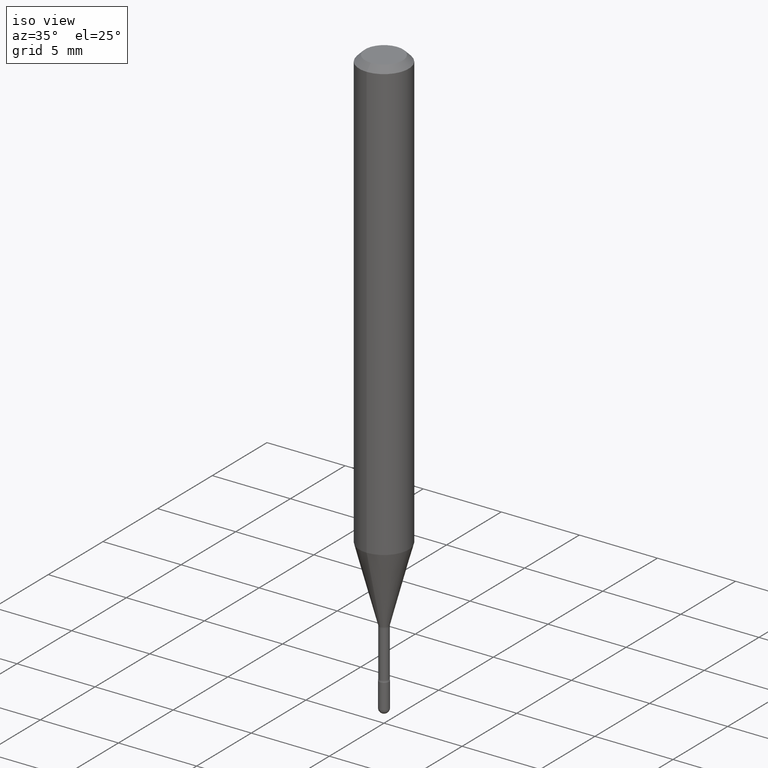
[diagram: clean part render]
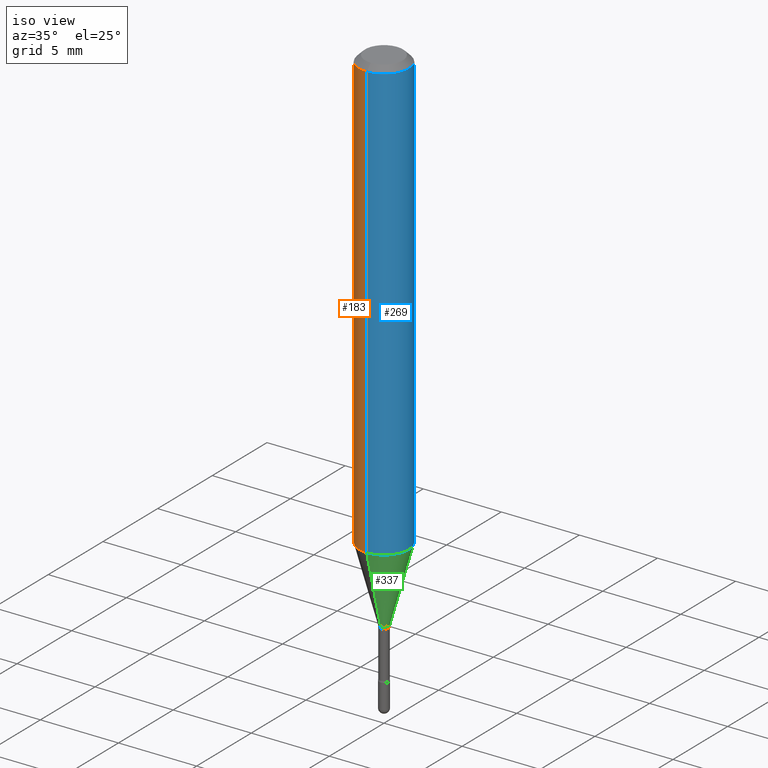
[diagram: same view with three faces highlighted in distinct colors, each labeled with its STEP entity id]
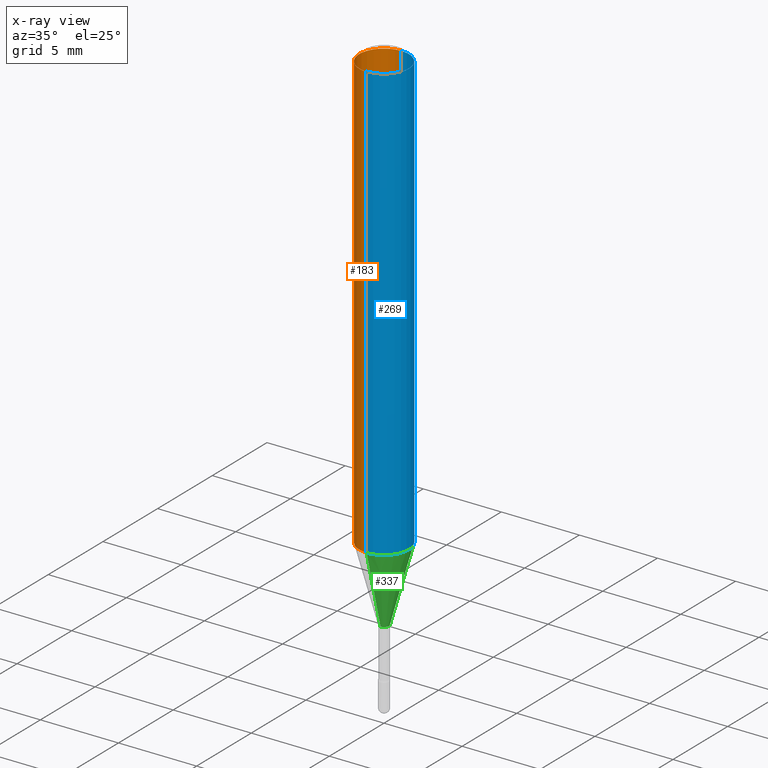
[diagram: x-ray of the same camera — body ghosted, the three highlighted faces saturated]
A machine part, iso view with three faces highlighted in distinct colors.
The next image is the same camera in x-ray (body ghosted, the three faces saturated) — at least one of them is partly hidden behind the body in this view.
Their STEP definitions:

[orange] entity #183 — the highlighted cylindrical surface (edge-blend (fillet) strip) has radius 1.5875 mm, axis along (-0, 0, 1).
#2 = CARTESIAN_POINT ( 'NONE',  ( 4.440892098500895360E-16, 0.06249999999999610728, -1.110598421515880396 ) ) ;
#3 = DIRECTION ( 'NONE',  ( -6.982962677686265922E-15, -1.000000000000000000, 3.483106191921935554E-15 ) ) ;
#17 = ORIENTED_EDGE ( 'NONE', *, *, #522, .F. ) ;
#19 = LINE ( 'NONE', #306, #483 ) ;
#24 = VERTEX_POINT ( 'NONE', #2 ) ;
#42 = AXIS2_PLACEMENT_3D ( 'NONE', #83, #350, #3 ) ;
#83 = CARTESIAN_POINT ( 'NONE',  ( 3.668297949123448778E-31, -5.237086335413414672E-17, -0.01500000000000008271 ) ) ;
#96 = CARTESIAN_POINT ( 'NONE',  ( -1.169113584055446105E-44, 1.669184350826100908E-30, 4.780733988912460139E-16 ) ) ;
#118 = AXIS2_PLACEMENT_3D ( 'NONE', #211, #528, #431 ) ;
#127 = VERTEX_POINT ( 'NONE', #231 ) ;
#140 = VERTEX_POINT ( 'NONE', #372 ) ;
#170 = EDGE_CURVE ( 'NONE', #127, #511, #19, .T. ) ;
#180 = FACE_OUTER_BOUND ( 'NONE', #210, .T. ) ;
#183 = ADVANCED_FACE ( 'NONE', ( #180 ), #226, .T. ) ;
#190 = DIRECTION ( 'NONE',  ( -2.445531966082285698E-29, 3.491390890275590093E-15, 1.000000000000000000 ) ) ;
#210 = EDGE_LOOP ( 'NONE', ( #17, #238, #452, #430 ) ) ;
#211 = CARTESIAN_POINT ( 'NONE',  ( 2.716003941297613379E-29, -3.877533211634993835E-15, -1.110598421515880174 ) ) ;
#226 = CYLINDRICAL_SURFACE ( 'NONE', #249, 0.06250000000000000000 ) ;
#228 = CARTESIAN_POINT ( 'NONE',  ( 4.440892098500625669E-16, 0.06250000000000000000, 2.598614682490216824E-16 ) ) ;
#231 = CARTESIAN_POINT ( 'NONE',  ( -4.364351673553644537E-16, -0.06250000000000387190, -1.110598421515879952 ) ) ;
#238 = ORIENTED_EDGE ( 'NONE', *, *, #465, .T. ) ;
#249 = AXIS2_PLACEMENT_3D ( 'NONE', #96, #315, #262 ) ;
#259 = LINE ( 'NONE', #228, #340 ) ;
#262 = DIRECTION ( 'NONE',  ( -6.982962677686265922E-15, -1.000000000000000000, 3.491390890275588910E-15 ) ) ;
#281 = CIRCLE ( 'NONE', #42, 0.06250000000000000000 ) ;
#306 = CARTESIAN_POINT ( 'NONE',  ( -4.364351673553916201E-16, -0.06250000000000000000, 6.962853295334703947E-16 ) ) ;
#315 = DIRECTION ( 'NONE',  ( -2.445531966082285698E-29, 3.491390890275590093E-15, 1.000000000000000000 ) ) ;
#340 = VECTOR ( 'NONE', #546, 39.37007874015748143 ) ;
#350 = DIRECTION ( 'NONE',  ( -2.445531966082285698E-29, 3.491390890275590093E-15, 1.000000000000000000 ) ) ;
#366 = CARTESIAN_POINT ( 'NONE',  ( -4.364351673553912750E-16, -0.06250000000000005551, -0.01499999999999986587 ) ) ;
#372 = CARTESIAN_POINT ( 'NONE',  ( 4.440892098500899305E-16, 0.06249999999999995143, -0.01500000000000030129 ) ) ;
#392 = EDGE_CURVE ( 'NONE', #140, #511, #281, .T. ) ;
#430 = ORIENTED_EDGE ( 'NONE', *, *, #392, .F. ) ;
#431 = DIRECTION ( 'NONE',  ( -6.982962677686265922E-15, -1.000000000000000000, 4.370956789862821150E-15 ) ) ;
#452 = ORIENTED_EDGE ( 'NONE', *, *, #170, .T. ) ;
#456 = CIRCLE ( 'NONE', #118, 0.06250000000000000000 ) ;
#465 = EDGE_CURVE ( 'NONE', #24, #127, #456, .T. ) ;
#483 = VECTOR ( 'NONE', #190, 39.37007874015748143 ) ;
#511 = VERTEX_POINT ( 'NONE', #366 ) ;
#522 = EDGE_CURVE ( 'NONE', #24, #140, #259, .T. ) ;
#528 = DIRECTION ( 'NONE',  ( -2.445531966082285698E-29, 3.491390890275590093E-15, 1.000000000000000000 ) ) ;
#546 = DIRECTION ( 'NONE',  ( -2.445531966082285698E-29, 3.491390890275590093E-15, 1.000000000000000000 ) ) ;

[blue] entity #269 — the highlighted cylindrical surface (edge-blend (fillet) strip) has radius 1.5875 mm, axis along (-0, 0, 1).
#2 = CARTESIAN_POINT ( 'NONE',  ( 4.440892098500895360E-16, 0.06249999999999610728, -1.110598421515880396 ) ) ;
#19 = LINE ( 'NONE', #306, #483 ) ;
#24 = VERTEX_POINT ( 'NONE', #2 ) ;
#30 = CYLINDRICAL_SURFACE ( 'NONE', #428, 0.06250000000000000000 ) ;
#53 = CIRCLE ( 'NONE', #124, 0.06250000000000000000 ) ;
#61 = DIRECTION ( 'NONE',  ( -2.445531966082285698E-29, 3.491390890275590093E-15, 1.000000000000000000 ) ) ;
#77 = DIRECTION ( 'NONE',  ( -6.982962677686265922E-15, -1.000000000000000000, 3.491390890275588910E-15 ) ) ;
#86 = ORIENTED_EDGE ( 'NONE', *, *, #501, .F. ) ;
#88 = ORIENTED_EDGE ( 'NONE', *, *, #90, .T. ) ;
#90 = EDGE_CURVE ( 'NONE', #127, #24, #53, .T. ) ;
#124 = AXIS2_PLACEMENT_3D ( 'NONE', #182, #61, #446 ) ;
#127 = VERTEX_POINT ( 'NONE', #231 ) ;
#138 = CARTESIAN_POINT ( 'NONE',  ( 3.668297949123448778E-31, -5.237086335413414672E-17, -0.01500000000000008271 ) ) ;
#140 = VERTEX_POINT ( 'NONE', #372 ) ;
#170 = EDGE_CURVE ( 'NONE', #127, #511, #19, .T. ) ;
#178 = AXIS2_PLACEMENT_3D ( 'NONE', #138, #184, #362 ) ;
#182 = CARTESIAN_POINT ( 'NONE',  ( 2.716003941297613379E-29, -3.877533211634993835E-15, -1.110598421515880174 ) ) ;
#184 = DIRECTION ( 'NONE',  ( -2.445531966082285698E-29, 3.491390890275590093E-15, 1.000000000000000000 ) ) ;
#190 = DIRECTION ( 'NONE',  ( -2.445531966082285698E-29, 3.491390890275590093E-15, 1.000000000000000000 ) ) ;
#200 = CARTESIAN_POINT ( 'NONE',  ( -1.169113584055446105E-44, 1.669184350826100908E-30, 4.780733988912460139E-16 ) ) ;
#202 = CIRCLE ( 'NONE', #178, 0.06250000000000000000 ) ;
#228 = CARTESIAN_POINT ( 'NONE',  ( 4.440892098500625669E-16, 0.06250000000000000000, 2.598614682490216824E-16 ) ) ;
#231 = CARTESIAN_POINT ( 'NONE',  ( -4.364351673553644537E-16, -0.06250000000000387190, -1.110598421515879952 ) ) ;
#254 = EDGE_LOOP ( 'NONE', ( #88, #537, #86, #490 ) ) ;
#259 = LINE ( 'NONE', #228, #340 ) ;
#269 = ADVANCED_FACE ( 'NONE', ( #381 ), #30, .T. ) ;
#306 = CARTESIAN_POINT ( 'NONE',  ( -4.364351673553916201E-16, -0.06250000000000000000, 6.962853295334703947E-16 ) ) ;
#339 = DIRECTION ( 'NONE',  ( -2.445531966082285698E-29, 3.491390890275590093E-15, 1.000000000000000000 ) ) ;
#340 = VECTOR ( 'NONE', #546, 39.37007874015748143 ) ;
#362 = DIRECTION ( 'NONE',  ( -6.982962677686265922E-15, -1.000000000000000000, 3.483106191921935554E-15 ) ) ;
#366 = CARTESIAN_POINT ( 'NONE',  ( -4.364351673553912750E-16, -0.06250000000000005551, -0.01499999999999986587 ) ) ;
#372 = CARTESIAN_POINT ( 'NONE',  ( 4.440892098500899305E-16, 0.06249999999999995143, -0.01500000000000030129 ) ) ;
#381 = FACE_OUTER_BOUND ( 'NONE', #254, .T. ) ;
#428 = AXIS2_PLACEMENT_3D ( 'NONE', #200, #339, #77 ) ;
#446 = DIRECTION ( 'NONE',  ( -6.982962677686265922E-15, -1.000000000000000000, 4.370956789862821150E-15 ) ) ;
#483 = VECTOR ( 'NONE', #190, 39.37007874015748143 ) ;
#490 = ORIENTED_EDGE ( 'NONE', *, *, #170, .F. ) ;
#501 = EDGE_CURVE ( 'NONE', #511, #140, #202, .T. ) ;
#511 = VERTEX_POINT ( 'NONE', #366 ) ;
#522 = EDGE_CURVE ( 'NONE', #24, #140, #259, .T. ) ;
#537 = ORIENTED_EDGE ( 'NONE', *, *, #522, .T. ) ;
#546 = DIRECTION ( 'NONE',  ( -2.445531966082285698E-29, 3.491390890275590093E-15, 1.000000000000000000 ) ) ;

[green] entity #337 — the highlighted conical surface has half-angle 15 deg.
#2 = CARTESIAN_POINT ( 'NONE',  ( 4.440892098500895360E-16, 0.06249999999999610728, -1.110598421515880396 ) ) ;
#11 = EDGE_CURVE ( 'NONE', #408, #24, #214, .T. ) ;
#24 = VERTEX_POINT ( 'NONE', #2 ) ;
#53 = CIRCLE ( 'NONE', #124, 0.06250000000000000000 ) ;
#61 = DIRECTION ( 'NONE',  ( -2.445531966082285698E-29, 3.491390890275590093E-15, 1.000000000000000000 ) ) ;
#78 = EDGE_CURVE ( 'NONE', #530, #408, #327, .T. ) ;
#81 = EDGE_CURVE ( 'NONE', #530, #127, #484, .T. ) ;
#90 = EDGE_CURVE ( 'NONE', #127, #24, #53, .T. ) ;
#95 = AXIS2_PLACEMENT_3D ( 'NONE', #458, #558, #199 ) ;
#100 = DIRECTION ( 'NONE',  ( 1.839019923739600315E-15, 0.2588190451025249583, 0.9659258262890670910 ) ) ;
#103 = DIRECTION ( 'NONE',  ( -2.445531966082285698E-29, 3.491390890275590093E-15, 1.000000000000000000 ) ) ;
#124 = AXIS2_PLACEMENT_3D ( 'NONE', #182, #61, #446 ) ;
#127 = VERTEX_POINT ( 'NONE', #231 ) ;
#154 = AXIS2_PLACEMENT_3D ( 'NONE', #454, #103, #443 ) ;
#182 = CARTESIAN_POINT ( 'NONE',  ( 2.716003941297613379E-29, -3.877533211634993835E-15, -1.110598421515880174 ) ) ;
#199 = DIRECTION ( 'NONE',  ( -6.982962677686265133E-15, -1.000000000000000000, 0.000000000000000000 ) ) ;
#214 = LINE ( 'NONE', #487, #321 ) ;
#217 = VECTOR ( 'NONE', #375, 39.37007874015748143 ) ;
#221 = ORIENTED_EDGE ( 'NONE', *, *, #81, .F. ) ;
#231 = CARTESIAN_POINT ( 'NONE',  ( -4.364351673553644537E-16, -0.06250000000000387190, -1.110598421515879952 ) ) ;
#319 = CONICAL_SURFACE ( 'NONE', #95, 0.01226111260566398187, 0.2617993877991502960 ) ;
#321 = VECTOR ( 'NONE', #100, 39.37007874015748143 ) ;
#327 = CIRCLE ( 'NONE', #154, 0.01226111260566398187 ) ;
#337 = ADVANCED_FACE ( 'NONE', ( #424 ), #319, .T. ) ;
#351 = ORIENTED_EDGE ( 'NONE', *, *, #90, .F. ) ;
#375 = DIRECTION ( 'NONE',  ( -1.807323732225330139E-15, -0.2588190451025181860, 0.9659258262890689783 ) ) ;
#408 = VERTEX_POINT ( 'NONE', #566 ) ;
#424 = FACE_OUTER_BOUND ( 'NONE', #494, .T. ) ;
#443 = DIRECTION ( 'NONE',  ( -6.982962677686265133E-15, -1.000000000000000000, 0.000000000000000000 ) ) ;
#446 = DIRECTION ( 'NONE',  ( -6.982962677686265922E-15, -1.000000000000000000, 4.370956789862821150E-15 ) ) ;
#454 = CARTESIAN_POINT ( 'NONE',  ( 3.174526708052502707E-29, -4.532148335475136049E-15, -1.298092501787273090 ) ) ;
#458 = CARTESIAN_POINT ( 'NONE',  ( 3.174526708052502707E-29, -4.532148335475136049E-15, -1.298092501787273090 ) ) ;
#481 = ORIENTED_EDGE ( 'NONE', *, *, #78, .T. ) ;
#484 = LINE ( 'NONE', #488, #217 ) ;
#487 = CARTESIAN_POINT ( 'NONE',  ( 8.712044494294308837E-17, 0.01226111260565944903, -1.298092501787273090 ) ) ;
#488 = CARTESIAN_POINT ( 'NONE',  ( -8.561889171222843884E-17, -0.01226111260566851470, -1.298092501787273090 ) ) ;
#494 = EDGE_LOOP ( 'NONE', ( #481, #544, #351, #221 ) ) ;
#530 = VERTEX_POINT ( 'NONE', #533 ) ;
#533 = CARTESIAN_POINT ( 'NONE',  ( -8.561889171222843884E-17, -0.01226111260566851470, -1.298092501787273090 ) ) ;
#544 = ORIENTED_EDGE ( 'NONE', *, *, #11, .T. ) ;
#558 = DIRECTION ( 'NONE',  ( -2.445531966082285698E-29, 3.491390890275590093E-15, 1.000000000000000000 ) ) ;
#566 = CARTESIAN_POINT ( 'NONE',  ( 2.656048273965165218E-16, 0.01226111260565944903, -1.298092501787273090 ) ) ;